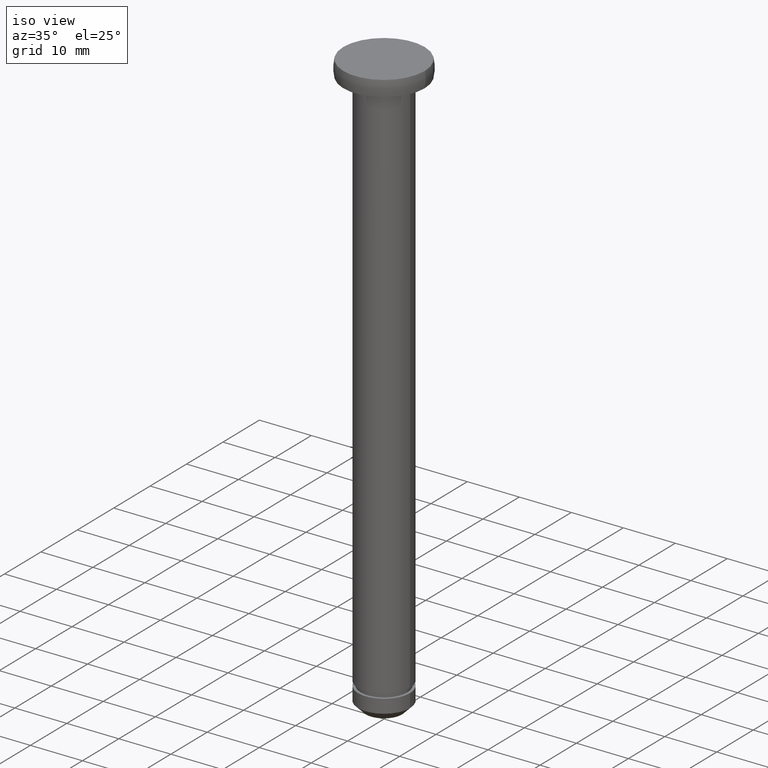
[diagram: clean part render]
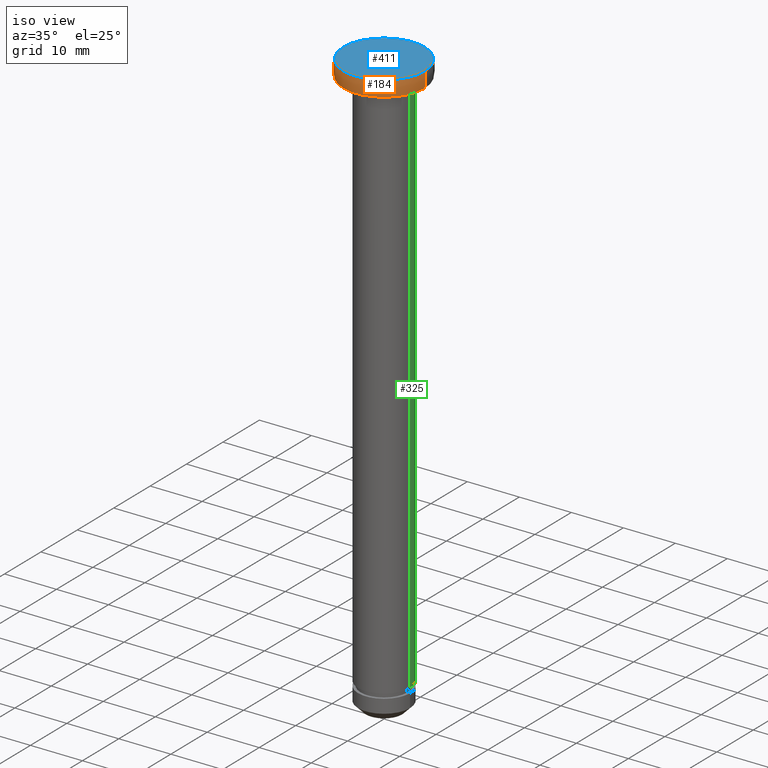
[diagram: same view with three faces highlighted in distinct colors, each labeled with its STEP entity id]
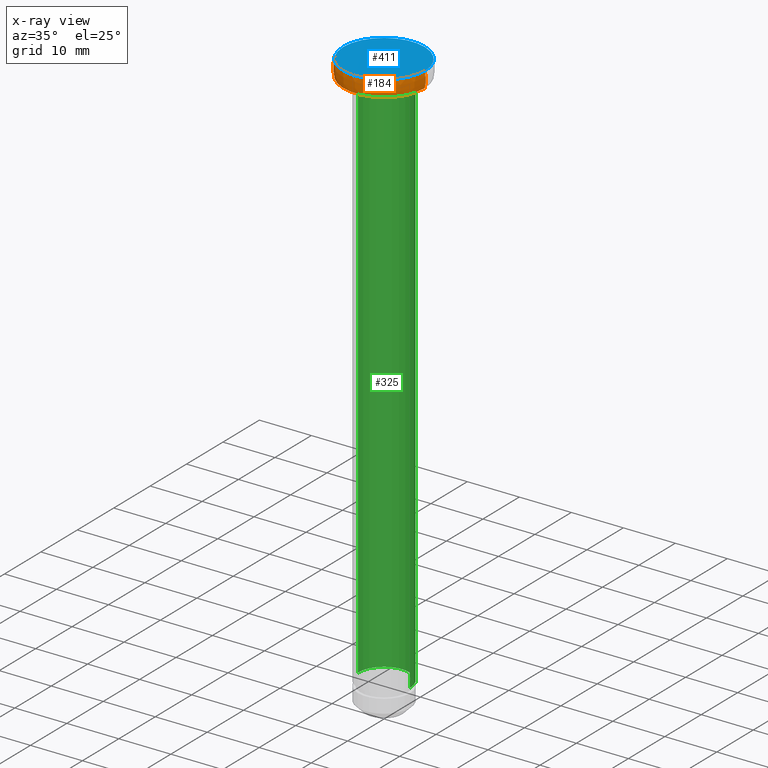
[diagram: x-ray of the same camera — body ghosted, the three highlighted faces saturated]
A machine part, iso view with three faces highlighted in distinct colors.
The next image is the same camera in x-ray (body ghosted, the three faces saturated) — at least one of them is partly hidden behind the body in this view.
Their STEP definitions:

[orange] entity #184 — the highlighted toroidal blend (fillet) surface has major radius 1.3572 mm and minor (blend) radius 6.6428 mm.
#16 = AXIS2_PLACEMENT_3D ( 'NONE', #266, #382, #212 ) ;
#18 = TOROIDAL_SURFACE ( 'NONE', #279, 1.357233208769898200, 6.642766791230085800 ) ;
#31 = DIRECTION ( 'NONE',  ( 0.0000000000000000000, 0.0000000000000000000, -1.000000000000000000 ) ) ;
#49 = AXIS2_PLACEMENT_3D ( 'NONE', #434, #114, #408 ) ;
#95 = CARTESIAN_POINT ( 'NONE',  ( 7.828427118366799500, 9.587058212866239700E-016, -3.280275356898344000E-014 ) ) ;
#114 = DIRECTION ( 'NONE',  ( 0.0000000000000000000, 0.0000000000000000000, -1.000000000000000000 ) ) ;
#132 = ORIENTED_EDGE ( 'NONE', *, *, #335, .T. ) ;
#151 = VERTEX_POINT ( 'NONE', #221 ) ;
#160 = EDGE_CURVE ( 'NONE', #290, #193, #258, .T. ) ;
#165 = DIRECTION ( 'NONE',  ( -1.000000000000000000, -1.224646799147353200E-016, 0.0000000000000000000 ) ) ;
#170 = CARTESIAN_POINT ( 'NONE',  ( -7.828427118366799500, 0.0000000000000000000, -3.280275356898344000E-014 ) ) ;
#175 = CARTESIAN_POINT ( 'NONE',  ( 0.0000000000000000000, 0.0000000000000000000, -1.500000009021790000 ) ) ;
#181 = CARTESIAN_POINT ( 'NONE',  ( 0.0000000000000000000, 0.0000000000000000000, -3.000000018043520000 ) ) ;
#184 = ADVANCED_FACE ( 'NONE', ( #189 ), #18, .T. ) ;
#188 = EDGE_CURVE ( 'NONE', #151, #262, #330, .T. ) ;
#189 = FACE_OUTER_BOUND ( 'NONE', #450, .T. ) ;
#193 = VERTEX_POINT ( 'NONE', #170 ) ;
#206 = DIRECTION ( 'NONE',  ( 0.0000000000000000000, 0.0000000000000000000, -1.000000000000000000 ) ) ;
#212 = DIRECTION ( 'NONE',  ( 0.0000000000000000000, 0.0000000000000000000, -1.000000000000000000 ) ) ;
#221 = CARTESIAN_POINT ( 'NONE',  ( 7.828427118366799500, 9.587058212866239700E-016, -3.000000018043520000 ) ) ;
#222 = CIRCLE ( 'NONE', #16, 6.642766791230085800 ) ;
#253 = AXIS2_PLACEMENT_3D ( 'NONE', #181, #206, #314 ) ;
#258 = CIRCLE ( 'NONE', #49, 7.828427118366799500 ) ;
#262 = VERTEX_POINT ( 'NONE', #336 ) ;
#266 = CARTESIAN_POINT ( 'NONE',  ( -1.357233208769898200, 0.0000000000000000000, -1.500000009021790000 ) ) ;
#279 = AXIS2_PLACEMENT_3D ( 'NONE', #175, #31, #354 ) ;
#281 = ORIENTED_EDGE ( 'NONE', *, *, #188, .F. ) ;
#282 = DIRECTION ( 'NONE',  ( -1.224646799147353200E-016, 1.000000000000000000, 0.0000000000000000000 ) ) ;
#290 = VERTEX_POINT ( 'NONE', #95 ) ;
#298 = AXIS2_PLACEMENT_3D ( 'NONE', #392, #282, #165 ) ;
#314 = DIRECTION ( 'NONE',  ( -1.000000000000000000, 0.0000000000000000000, 0.0000000000000000000 ) ) ;
#330 = CIRCLE ( 'NONE', #253, 7.828427118366799500 ) ;
#335 = EDGE_CURVE ( 'NONE', #193, #262, #222, .T. ) ;
#336 = CARTESIAN_POINT ( 'NONE',  ( -7.828427118366799500, 0.0000000000000000000, -3.000000018043520000 ) ) ;
#354 = DIRECTION ( 'NONE',  ( -1.000000000000000000, 0.0000000000000000000, 0.0000000000000000000 ) ) ;
#382 = DIRECTION ( 'NONE',  ( -0.0000000000000000000, -1.000000000000000000, -0.0000000000000000000 ) ) ;
#392 = CARTESIAN_POINT ( 'NONE',  ( 1.357233208769898200, 1.662131304816547000E-016, -1.500000009021790000 ) ) ;
#408 = DIRECTION ( 'NONE',  ( -1.000000000000000000, 0.0000000000000000000, 0.0000000000000000000 ) ) ;
#434 = CARTESIAN_POINT ( 'NONE',  ( 0.0000000000000000000, 0.0000000000000000000, -3.280275356898344000E-014 ) ) ;
#440 = ORIENTED_EDGE ( 'NONE', *, *, #442, .F. ) ;
#442 = EDGE_CURVE ( 'NONE', #290, #151, #460, .T. ) ;
#450 = EDGE_LOOP ( 'NONE', ( #440, #457, #132, #281 ) ) ;
#457 = ORIENTED_EDGE ( 'NONE', *, *, #160, .T. ) ;
#460 = CIRCLE ( 'NONE', #298, 6.642766791230085800 ) ;

[blue] entity #411 — the highlighted planar face has unit normal (0, 0, 1).
#15 = ORIENTED_EDGE ( 'NONE', *, *, #66, .F. ) ;
#49 = AXIS2_PLACEMENT_3D ( 'NONE', #434, #114, #408 ) ;
#58 = ORIENTED_EDGE ( 'NONE', *, *, #160, .F. ) ;
#66 = EDGE_CURVE ( 'NONE', #193, #290, #328, .T. ) ;
#95 = CARTESIAN_POINT ( 'NONE',  ( 7.828427118366799500, 9.587058212866239700E-016, -3.280275356898344000E-014 ) ) ;
#114 = DIRECTION ( 'NONE',  ( 0.0000000000000000000, 0.0000000000000000000, -1.000000000000000000 ) ) ;
#128 = DIRECTION ( 'NONE',  ( 1.000000000000000000, 0.0000000000000000000, 0.0000000000000000000 ) ) ;
#160 = EDGE_CURVE ( 'NONE', #290, #193, #258, .T. ) ;
#162 = DIRECTION ( 'NONE',  ( 0.0000000000000000000, -0.0000000000000000000, 1.000000000000000000 ) ) ;
#170 = CARTESIAN_POINT ( 'NONE',  ( -7.828427118366799500, 0.0000000000000000000, -3.280275356898344000E-014 ) ) ;
#171 = DIRECTION ( 'NONE',  ( 0.0000000000000000000, 0.0000000000000000000, -1.000000000000000000 ) ) ;
#193 = VERTEX_POINT ( 'NONE', #170 ) ;
#233 = CARTESIAN_POINT ( 'NONE',  ( 7.828427118366799500, 0.0000000000000000000, -3.280275367486255800E-014 ) ) ;
#258 = CIRCLE ( 'NONE', #49, 7.828427118366799500 ) ;
#270 = FACE_OUTER_BOUND ( 'NONE', #384, .T. ) ;
#271 = AXIS2_PLACEMENT_3D ( 'NONE', #233, #162, #128 ) ;
#290 = VERTEX_POINT ( 'NONE', #95 ) ;
#291 = CARTESIAN_POINT ( 'NONE',  ( 0.0000000000000000000, 0.0000000000000000000, -3.280275356898344000E-014 ) ) ;
#328 = CIRCLE ( 'NONE', #415, 7.828427118366799500 ) ;
#341 = PLANE ( 'NONE',  #271 ) ;
#384 = EDGE_LOOP ( 'NONE', ( #15, #58 ) ) ;
#408 = DIRECTION ( 'NONE',  ( -1.000000000000000000, 0.0000000000000000000, 0.0000000000000000000 ) ) ;
#411 = ADVANCED_FACE ( 'NONE', ( #270 ), #341, .T. ) ;
#415 = AXIS2_PLACEMENT_3D ( 'NONE', #291, #171, #435 ) ;
#434 = CARTESIAN_POINT ( 'NONE',  ( 0.0000000000000000000, 0.0000000000000000000, -3.280275356898344000E-014 ) ) ;
#435 = DIRECTION ( 'NONE',  ( -1.000000000000000000, 0.0000000000000000000, 0.0000000000000000000 ) ) ;

[green] entity #325 — the highlighted cylindrical surface (edge-blend (fillet) strip) has radius 5 mm, axis along (0, 0, -1).
#10 = EDGE_CURVE ( 'NONE', #200, #320, #235, .T. ) ;
#36 = AXIS2_PLACEMENT_3D ( 'NONE', #284, #303, #53 ) ;
#45 = EDGE_CURVE ( 'NONE', #320, #417, #445, .T. ) ;
#53 = DIRECTION ( 'NONE',  ( -1.000000000000000000, 0.0000000000000000000, 0.0000000000000000000 ) ) ;
#67 = ORIENTED_EDGE ( 'NONE', *, *, #158, .T. ) ;
#74 = DIRECTION ( 'NONE',  ( 0.0000000000000000000, 0.0000000000000000000, -1.000000000000000000 ) ) ;
#80 = CARTESIAN_POINT ( 'NONE',  ( 0.0000000000000000000, 0.0000000000000000000, -108.0000000360869900 ) ) ;
#81 = VERTEX_POINT ( 'NONE', #373 ) ;
#85 = DIRECTION ( 'NONE',  ( 0.0000000000000000000, 0.0000000000000000000, -1.000000000000000000 ) ) ;
#86 = CIRCLE ( 'NONE', #244, 5.000000000000000000 ) ;
#129 = EDGE_LOOP ( 'NONE', ( #180, #67, #207, #183 ) ) ;
#135 = CARTESIAN_POINT ( 'NONE',  ( 0.0000000000000000000, 0.0000000000000000000, -3.000000018043495100 ) ) ;
#137 = CARTESIAN_POINT ( 'NONE',  ( -5.000000000000000000, 0.0000000000000000000, -3.280275378074167100E-014 ) ) ;
#138 = CARTESIAN_POINT ( 'NONE',  ( 5.000000000000000000, 6.123233995736766300E-016, -3.280275378074167100E-014 ) ) ;
#154 = LINE ( 'NONE', #138, #329 ) ;
#158 = EDGE_CURVE ( 'NONE', #81, #417, #154, .T. ) ;
#176 = DIRECTION ( 'NONE',  ( 0.0000000000000000000, 0.0000000000000000000, -1.000000000000000000 ) ) ;
#180 = ORIENTED_EDGE ( 'NONE', *, *, #420, .T. ) ;
#183 = ORIENTED_EDGE ( 'NONE', *, *, #10, .F. ) ;
#200 = VERTEX_POINT ( 'NONE', #351 ) ;
#207 = ORIENTED_EDGE ( 'NONE', *, *, #45, .F. ) ;
#216 = DIRECTION ( 'NONE',  ( 0.0000000000000000000, 0.0000000000000000000, -1.000000000000000000 ) ) ;
#235 = LINE ( 'NONE', #137, #451 ) ;
#237 = FACE_OUTER_BOUND ( 'NONE', #129, .T. ) ;
#244 = AXIS2_PLACEMENT_3D ( 'NONE', #135, #176, #317 ) ;
#256 = AXIS2_PLACEMENT_3D ( 'NONE', #80, #85, #414 ) ;
#284 = CARTESIAN_POINT ( 'NONE',  ( 0.0000000000000000000, 0.0000000000000000000, -3.280275378074167100E-014 ) ) ;
#301 = CYLINDRICAL_SURFACE ( 'NONE', #36, 5.000000000000000000 ) ;
#303 = DIRECTION ( 'NONE',  ( 0.0000000000000000000, 0.0000000000000000000, -1.000000000000000000 ) ) ;
#317 = DIRECTION ( 'NONE',  ( -1.000000000000000000, 0.0000000000000000000, 0.0000000000000000000 ) ) ;
#320 = VERTEX_POINT ( 'NONE', #322 ) ;
#322 = CARTESIAN_POINT ( 'NONE',  ( -5.000000000000000000, 0.0000000000000000000, -108.0000000360869900 ) ) ;
#325 = ADVANCED_FACE ( 'NONE', ( #237 ), #301, .T. ) ;
#329 = VECTOR ( 'NONE', #74, 1000.000000000000000 ) ;
#338 = CARTESIAN_POINT ( 'NONE',  ( 5.000000000000000000, 6.123233995736766300E-016, -108.0000000360869900 ) ) ;
#351 = CARTESIAN_POINT ( 'NONE',  ( -5.000000000000000000, 0.0000000000000000000, -3.000000018043495100 ) ) ;
#373 = CARTESIAN_POINT ( 'NONE',  ( 5.000000000000000000, 6.123233995736766300E-016, -3.000000018043495100 ) ) ;
#414 = DIRECTION ( 'NONE',  ( -1.000000000000000000, 0.0000000000000000000, 0.0000000000000000000 ) ) ;
#417 = VERTEX_POINT ( 'NONE', #338 ) ;
#420 = EDGE_CURVE ( 'NONE', #200, #81, #86, .T. ) ;
#445 = CIRCLE ( 'NONE', #256, 5.000000000000000000 ) ;
#451 = VECTOR ( 'NONE', #216, 1000.000000000000000 ) ;